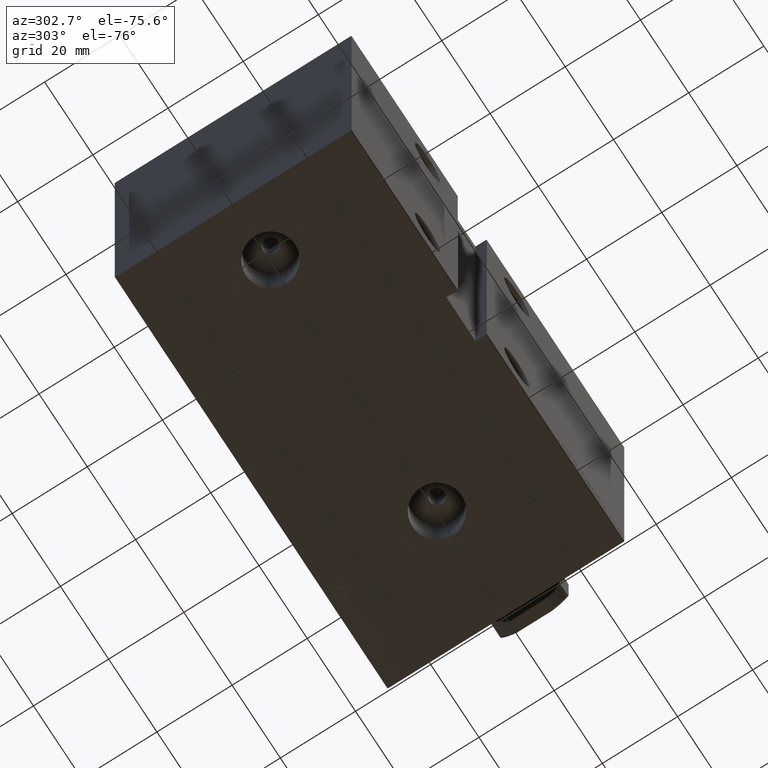
[diagram: clean part render]
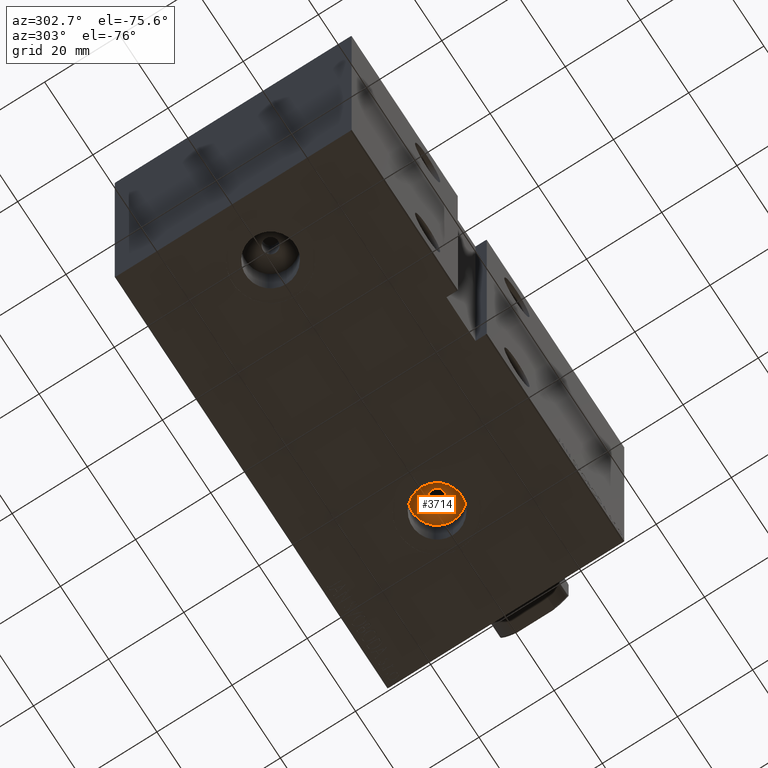
[diagram: same view with one face highlighted and labeled with its STEP entity id]
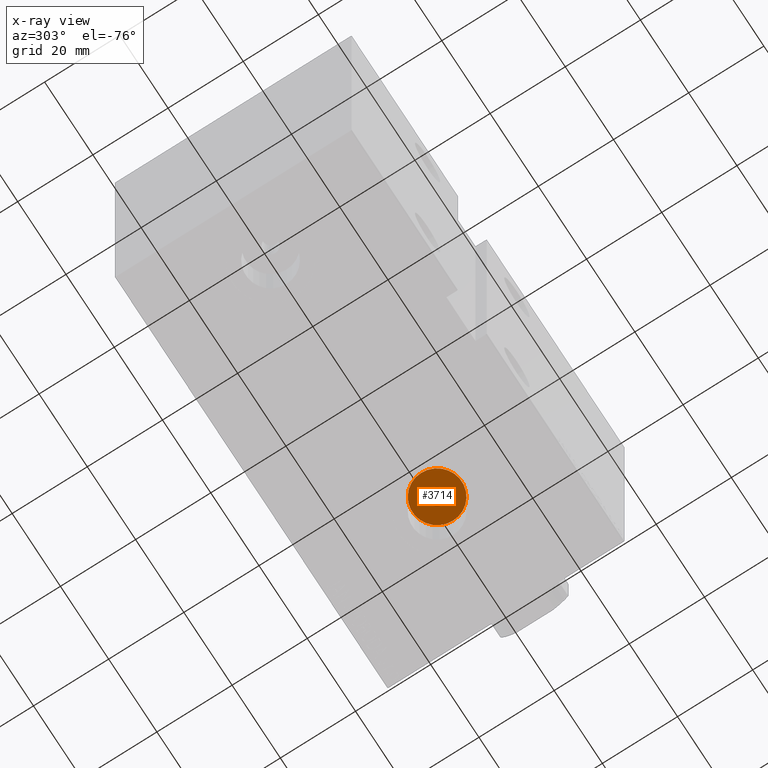
[diagram: x-ray of the same camera — body ghosted, the highlighted face saturated]
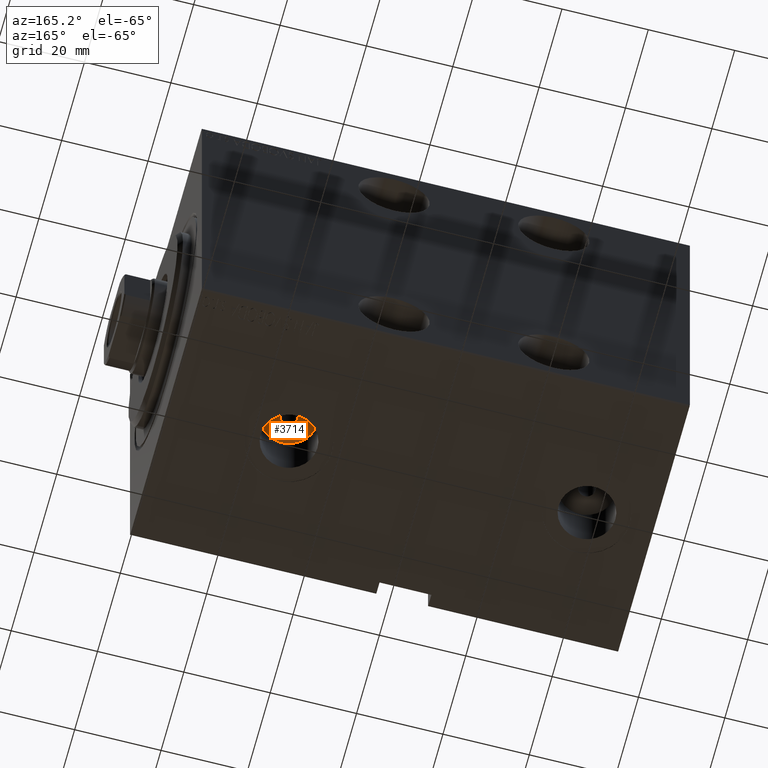
[diagram: same view with one face highlighted and labeled with its STEP entity id]
A machine part, auxiliary view. The second image highlights one B-rep face of the part: STEP entity #3714.
The next image is the same camera in x-ray: the body ghosted, the highlighted face saturated — about 0% of this face is hidden behind the body in this view.
A second angle (auxiliary view) of the same face is appended — the face is thin or edge-on in the first view.
In plain terms, the highlighted planar face has unit normal (-0, 0, -1).
Its self-contained STEP definition (entity closure, byte-faithful):
#183 = AXIS2_PLACEMENT_3D ( 'NONE', #12413, #35548, #42289 ) ;
#1530 = VERTEX_POINT ( 'NONE', #13907 ) ;
#2178 = VERTEX_POINT ( 'NONE', #23342 ) ;
#2790 = DIRECTION ( 'NONE',  ( -1.000000000000000000, 0.000000000000000000, 0.000000000000000000 ) ) ;
#3714 = ADVANCED_FACE ( 'NONE', ( #18172, #37828 ), #17540, .T. ) ;
#4868 = ORIENTED_EDGE ( 'NONE', *, *, #23201, .F. ) ;
#5169 = EDGE_CURVE ( 'NONE', #41162, #1530, #19994, .T. ) ;
#5648 = CIRCLE ( 'NONE', #7745, 1.999999999999998224 ) ;
#6687 = VERTEX_POINT ( 'NONE', #16041 ) ;
#7181 = EDGE_LOOP ( 'NONE', ( #12951, #28994 ) ) ;
#7745 = AXIS2_PLACEMENT_3D ( 'NONE', #19032, #22511, #33003 ) ;
#8155 = DIRECTION ( 'NONE',  ( 0.000000000000000000, 0.000000000000000000, -1.000000000000000000 ) ) ;
#8993 = DIRECTION ( 'NONE',  ( 0.000000000000000000, 0.000000000000000000, -1.000000000000000000 ) ) ;
#12413 = CARTESIAN_POINT ( 'NONE',  ( 28.50000000000000000, -6.196433163362530470E-15, -29.50000000000000711 ) ) ;
#12951 = ORIENTED_EDGE ( 'NONE', *, *, #5169, .T. ) ;
#13107 = AXIS2_PLACEMENT_3D ( 'NONE', #13252, #23057, #2790 ) ;
#13252 = CARTESIAN_POINT ( 'NONE',  ( 28.50000000000000000, -6.196433163362530470E-15, -29.50000000000000711 ) ) ;
#13907 = CARTESIAN_POINT ( 'NONE',  ( 35.07999999999999829, -5.390615569523572217E-15, -29.50000000000000711 ) ) ;
#14777 = EDGE_CURVE ( 'NONE', #1530, #41162, #27257, .T. ) ;
#16041 = CARTESIAN_POINT ( 'NONE',  ( 26.50000000000000355, -6.196433163362530470E-15, -29.50000000000000711 ) ) ;
#16187 = CARTESIAN_POINT ( 'NONE',  ( 28.50000000000000000, -6.196433163362530470E-15, -29.50000000000000711 ) ) ;
#17540 = PLANE ( 'NONE',  #33231 ) ;
#18172 = FACE_BOUND ( 'NONE', #20836, .T. ) ;
#18859 = EDGE_CURVE ( 'NONE', #2178, #6687, #5648, .T. ) ;
#19032 = CARTESIAN_POINT ( 'NONE',  ( 28.50000000000000000, -6.196433163362530470E-15, -29.50000000000000711 ) ) ;
#19565 = AXIS2_PLACEMENT_3D ( 'NONE', #16187, #8993, #38660 ) ;
#19994 = CIRCLE ( 'NONE', #13107, 6.580000000000002736 ) ;
#20836 = EDGE_LOOP ( 'NONE', ( #4868, #42363 ) ) ;
#22511 = DIRECTION ( 'NONE',  ( 0.000000000000000000, 0.000000000000000000, -1.000000000000000000 ) ) ;
#23057 = DIRECTION ( 'NONE',  ( 0.000000000000000000, 0.000000000000000000, -1.000000000000000000 ) ) ;
#23201 = EDGE_CURVE ( 'NONE', #6687, #2178, #41276, .T. ) ;
#23342 = CARTESIAN_POINT ( 'NONE',  ( 30.50000000000000000, -5.951503803533059385E-15, -29.50000000000000711 ) ) ;
#27257 = CIRCLE ( 'NONE', #19565, 6.580000000000002736 ) ;
#28994 = ORIENTED_EDGE ( 'NONE', *, *, #14777, .T. ) ;
#33003 = DIRECTION ( 'NONE',  ( -1.000000000000000000, 0.000000000000000000, 0.000000000000000000 ) ) ;
#33231 = AXIS2_PLACEMENT_3D ( 'NONE', #37619, #8155, #38258 ) ;
#35548 = DIRECTION ( 'NONE',  ( 0.000000000000000000, 0.000000000000000000, -1.000000000000000000 ) ) ;
#37081 = CARTESIAN_POINT ( 'NONE',  ( 21.91999999999999815, -6.196433163362530470E-15, -29.50000000000000711 ) ) ;
#37619 = CARTESIAN_POINT ( 'NONE',  ( 28.50000000000000000, -6.196433163362530470E-15, -29.50000000000000711 ) ) ;
#37828 = FACE_OUTER_BOUND ( 'NONE', #7181, .T. ) ;
#38258 = DIRECTION ( 'NONE',  ( -1.000000000000000000, 0.000000000000000000, -0.000000000000000000 ) ) ;
#38660 = DIRECTION ( 'NONE',  ( -1.000000000000000000, 0.000000000000000000, 0.000000000000000000 ) ) ;
#41162 = VERTEX_POINT ( 'NONE', #37081 ) ;
#41276 = CIRCLE ( 'NONE', #183, 1.999999999999998224 ) ;
#42289 = DIRECTION ( 'NONE',  ( -1.000000000000000000, 0.000000000000000000, 0.000000000000000000 ) ) ;
#42363 = ORIENTED_EDGE ( 'NONE', *, *, #18859, .F. ) ;